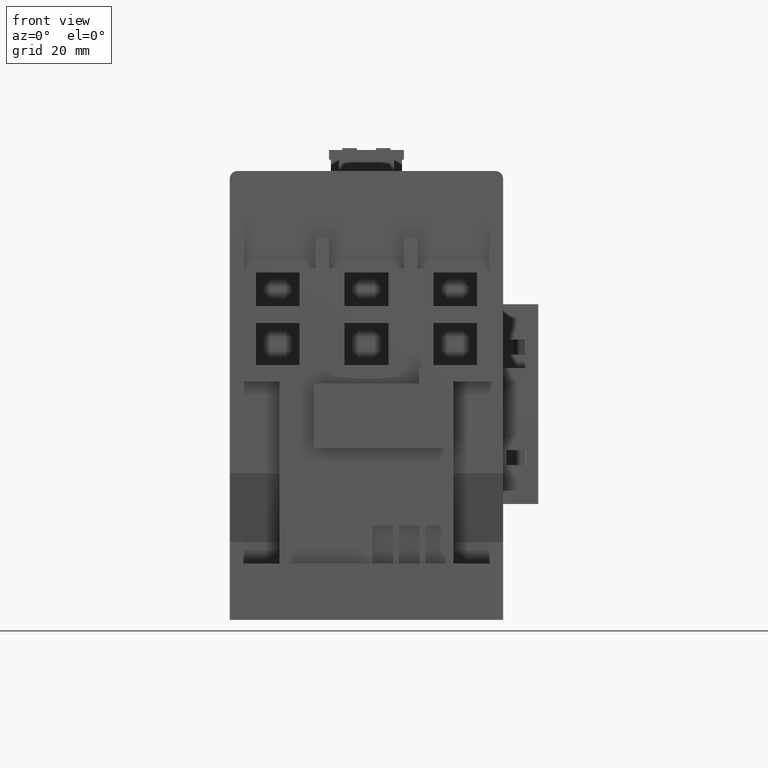
[diagram: clean part render]
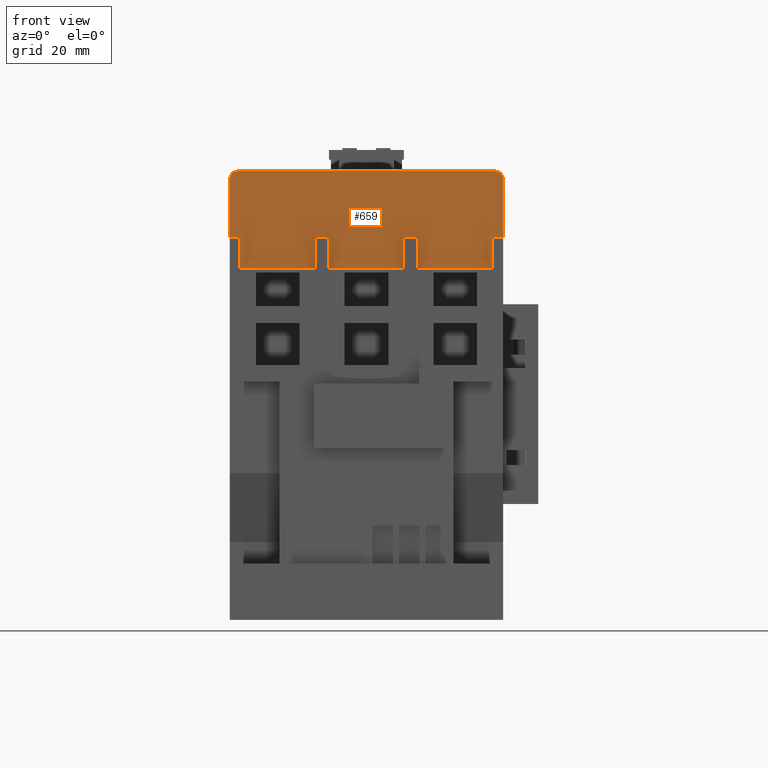
[diagram: same view with one face highlighted and labeled with its STEP entity id]
A machine part, front view. The second image highlights one B-rep face of the part: STEP entity #659.
In plain terms, the highlighted planar face has unit normal (0, -1, 0).
Its self-contained STEP definition (entity closure, byte-faithful):
#173=CIRCLE('',#8673,2.);
#174=CIRCLE('',#8674,2.);
#259=FACE_OUTER_BOUND('',#1747,.T.);
#659=ADVANCED_FACE('',(#259),#1110,.T.);
#1110=PLANE('',#8675);
#1747=EDGE_LOOP('',(#2676,#2677,#2678,#2679,#2680,#2681,#2682,#2683,#2684,
#2685,#2686,#2687,#2688,#2689,#2690,#2691,#2692,#2693));
#2676=ORIENTED_EDGE('',*,*,#5453,.T.);
#2677=ORIENTED_EDGE('',*,*,#5746,.T.);
#2678=ORIENTED_EDGE('',*,*,#5485,.F.);
#2679=ORIENTED_EDGE('',*,*,#5747,.F.);
#2680=ORIENTED_EDGE('',*,*,#5748,.F.);
#2681=ORIENTED_EDGE('',*,*,#5749,.F.);
#2682=ORIENTED_EDGE('',*,*,#5750,.F.);
#2683=ORIENTED_EDGE('',*,*,#5751,.F.);
#2684=ORIENTED_EDGE('',*,*,#5752,.F.);
#2685=ORIENTED_EDGE('',*,*,#5753,.F.);
#2686=ORIENTED_EDGE('',*,*,#5754,.F.);
#2687=ORIENTED_EDGE('',*,*,#5755,.F.);
#2688=ORIENTED_EDGE('',*,*,#5756,.F.);
#2689=ORIENTED_EDGE('',*,*,#5757,.F.);
#2690=ORIENTED_EDGE('',*,*,#5758,.F.);
#2691=ORIENTED_EDGE('',*,*,#5759,.F.);
#2692=ORIENTED_EDGE('',*,*,#5524,.T.);
#2693=ORIENTED_EDGE('',*,*,#5760,.T.);
#4657=VERTEX_POINT('',#11582);
#4658=VERTEX_POINT('',#11584);
#4685=VERTEX_POINT('',#11644);
#4686=VERTEX_POINT('',#11645);
#4723=VERTEX_POINT('',#11721);
#4724=VERTEX_POINT('',#11723);
#4920=VERTEX_POINT('',#12159);
#4921=VERTEX_POINT('',#12161);
#4922=VERTEX_POINT('',#12163);
#4923=VERTEX_POINT('',#12165);
#4924=VERTEX_POINT('',#12167);
#4925=VERTEX_POINT('',#12169);
#4926=VERTEX_POINT('',#12171);
#4927=VERTEX_POINT('',#12173);
#4928=VERTEX_POINT('',#12175);
#4929=VERTEX_POINT('',#12177);
#4930=VERTEX_POINT('',#12179);
#4931=VERTEX_POINT('',#12181);
#5453=EDGE_CURVE('',#4658,#4657,#6616,.T.);
#5485=EDGE_CURVE('',#4685,#4686,#6642,.T.);
#5524=EDGE_CURVE('',#4724,#4723,#6681,.T.);
#5746=EDGE_CURVE('',#4657,#4686,#173,.T.);
#5747=EDGE_CURVE('',#4920,#4685,#6871,.T.);
#5748=EDGE_CURVE('',#4921,#4920,#6872,.T.);
#5749=EDGE_CURVE('',#4922,#4921,#6873,.T.);
#5750=EDGE_CURVE('',#4923,#4922,#6874,.T.);
#5751=EDGE_CURVE('',#4924,#4923,#6875,.T.);
#5752=EDGE_CURVE('',#4925,#4924,#6876,.T.);
#5753=EDGE_CURVE('',#4926,#4925,#6877,.T.);
#5754=EDGE_CURVE('',#4927,#4926,#6878,.T.);
#5755=EDGE_CURVE('',#4928,#4927,#6879,.T.);
#5756=EDGE_CURVE('',#4929,#4928,#6880,.T.);
#5757=EDGE_CURVE('',#4930,#4929,#6881,.T.);
#5758=EDGE_CURVE('',#4931,#4930,#6882,.T.);
#5759=EDGE_CURVE('',#4724,#4931,#6883,.T.);
#5760=EDGE_CURVE('',#4723,#4658,#174,.T.);
#6616=LINE('',#11583,#7669);
#6642=LINE('',#11643,#7695);
#6681=LINE('',#11722,#7734);
#6871=LINE('',#12158,#7924);
#6872=LINE('',#12160,#7925);
#6873=LINE('',#12162,#7926);
#6874=LINE('',#12164,#7927);
#6875=LINE('',#12166,#7928);
#6876=LINE('',#12168,#7929);
#6877=LINE('',#12170,#7930);
#6878=LINE('',#12172,#7931);
#6879=LINE('',#12174,#7932);
#6880=LINE('',#12176,#7933);
#6881=LINE('',#12178,#7934);
#6882=LINE('',#12180,#7935);
#6883=LINE('',#12182,#7936);
#7669=VECTOR('',#9306,1.);
#7695=VECTOR('',#9346,1.);
#7734=VECTOR('',#9387,1.);
#7924=VECTOR('',#9677,1.);
#7925=VECTOR('',#9678,1.);
#7926=VECTOR('',#9679,1.);
#7927=VECTOR('',#9680,1.);
#7928=VECTOR('',#9681,1.);
#7929=VECTOR('',#9682,1.);
#7930=VECTOR('',#9683,1.);
#7931=VECTOR('',#9684,1.);
#7932=VECTOR('',#9685,1.);
#7933=VECTOR('',#9686,1.);
#7934=VECTOR('',#9687,1.);
#7935=VECTOR('',#9688,1.);
#7936=VECTOR('',#9689,1.);
#8673=AXIS2_PLACEMENT_3D('',#12157,#9675,#9676);
#8674=AXIS2_PLACEMENT_3D('',#12183,#9690,#9691);
#8675=AXIS2_PLACEMENT_3D('',#12184,#9692,#9693);
#9306=DIRECTION('',(-1.,0.,0.));
#9346=DIRECTION('',(0.,0.,1.));
#9387=DIRECTION('',(0.,0.,1.));
#9675=DIRECTION('',(0.,-1.,0.));
#9676=DIRECTION('',(0.,0.,-1.));
#9677=DIRECTION('',(-1.,0.,0.));
#9678=DIRECTION('',(0.,0.,1.));
#9679=DIRECTION('',(-1.,0.,7.04456233899211E-016));
#9680=DIRECTION('',(0.,0.,-1.));
#9681=DIRECTION('',(-1.,0.,0.));
#9682=DIRECTION('',(0.,0.,1.));
#9683=DIRECTION('',(-1.,0.,7.08050398357881E-016));
#9684=DIRECTION('',(0.,0.,-1.));
#9685=DIRECTION('',(-1.,0.,0.));
#9686=DIRECTION('',(0.,0.,1.));
#9687=DIRECTION('',(-1.,0.,0.));
#9688=DIRECTION('',(0.,0.,-1.));
#9689=DIRECTION('',(-1.,0.,0.));
#9690=DIRECTION('',(0.,-1.,0.));
#9691=DIRECTION('',(0.,0.,-1.));
#9692=DIRECTION('',(0.,-1.,0.));
#9693=DIRECTION('',(0.,0.,-1.));
#11582=CARTESIAN_POINT('',(-33.8,-51.2,112.55));
#11583=CARTESIAN_POINT('',(35.8,-51.2,112.55));
#11584=CARTESIAN_POINT('',(33.8,-51.2,112.55));
#11643=CARTESIAN_POINT('',(-35.8,-51.2,96.4000000000094));
#11644=CARTESIAN_POINT('',(-35.8,-51.2,95.1500000000094));
#11645=CARTESIAN_POINT('',(-35.8,-51.2,110.55));
#11721=CARTESIAN_POINT('',(35.8,-51.2,110.55));
#11722=CARTESIAN_POINT('',(35.8,-51.2,96.4000000000094));
#11723=CARTESIAN_POINT('',(35.8,-51.2,95.1500000000094));
#12157=CARTESIAN_POINT('',(-33.8,-51.2,110.55));
#12158=CARTESIAN_POINT('',(-33.1,-51.2,95.1500000000094));
#12159=CARTESIAN_POINT('',(-33.1,-51.2,95.1500000000094));
#12160=CARTESIAN_POINT('',(-33.1,-51.2,86.9500000000094));
#12161=CARTESIAN_POINT('',(-33.1,-51.2,86.9500000000094));
#12162=CARTESIAN_POINT('',(-13.4,-51.2,86.9500000000094));
#12163=CARTESIAN_POINT('',(-13.4,-51.2,86.9500000000094));
#12164=CARTESIAN_POINT('',(-13.4,-51.2,95.1500000000094));
#12165=CARTESIAN_POINT('',(-13.4,-51.2,95.1500000000094));
#12166=CARTESIAN_POINT('',(-9.8,-51.2,95.1500000000094));
#12167=CARTESIAN_POINT('',(-9.8,-51.2,95.1500000000094));
#12168=CARTESIAN_POINT('',(-9.8,-51.2,86.9500000000093));
#12169=CARTESIAN_POINT('',(-9.8,-51.2,86.9500000000093));
#12170=CARTESIAN_POINT('',(9.8,-51.2,86.9500000000093));
#12171=CARTESIAN_POINT('',(9.8,-51.2,86.9500000000093));
#12172=CARTESIAN_POINT('',(9.8,-51.2,95.1500000000094));
#12173=CARTESIAN_POINT('',(9.8,-51.2,95.1500000000094));
#12174=CARTESIAN_POINT('',(13.4,-51.2,95.1500000000094));
#12175=CARTESIAN_POINT('',(13.4,-51.2,95.1500000000094));
#12176=CARTESIAN_POINT('',(13.4,-51.2,86.9500000000094));
#12177=CARTESIAN_POINT('',(13.4,-51.2,86.9500000000094));
#12178=CARTESIAN_POINT('',(33.1,-51.2,86.9500000000094));
#12179=CARTESIAN_POINT('',(33.1,-51.2,86.9500000000094));
#12180=CARTESIAN_POINT('',(33.1,-51.2,95.1500000000094));
#12181=CARTESIAN_POINT('',(33.1,-51.2,95.1500000000094));
#12182=CARTESIAN_POINT('',(35.8,-51.2,95.1500000000094));
#12183=CARTESIAN_POINT('',(33.8,-51.2,110.55));
#12184=CARTESIAN_POINT('',(35.8,-51.2,96.4000000000094));